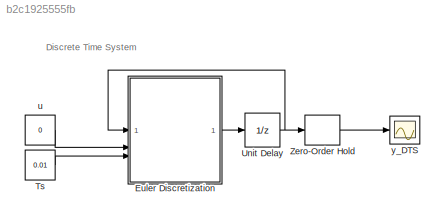
MODEL slx_b2c1925555fb
KIND model
CONFIG AbsTol = auto
CONFIG EnableMultiTasking = off
CONFIG FixedStep = 0.01
CONFIG MaxStep = auto
CONFIG MinStep = auto
CONFIG RelTol = 1e-3
CONFIG SampleTimeConstraint = Unconstrained
CONFIG SolverName = FixedStepAuto
CONFIG StartTime = 0
CONFIG StopTime = 100
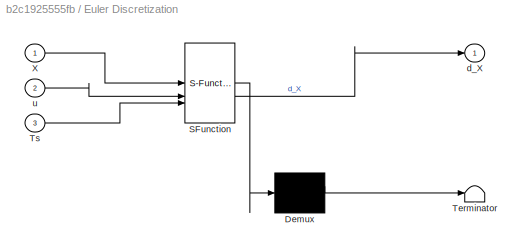
BLOCK [SubSystem] Euler Discretization
  ErrorFcn = Stateflow.Translate.translate
  PermitHierarchicalResolution = ExplicitOnly
  SFBlockType = MATLAB Function
  TreatAsAtomicUnit = on
BLOCK [Demux] Euler Discretization/ Demux 
  Outputs = 1
BLOCK [S-Function] Euler Discretization/ SFunction 
  EnableBusSupport = on
  FunctionName = sf_sfun
  PortCounts = [3 2]
  SFcnIsStateOwnerBlock = off
  SFunctionDeploymentMode = off
  Tag = Stateflow S-Function 2
BLOCK [Terminator] Euler Discretization/ Terminator 
BLOCK [Inport] Euler Discretization/Ts
  Port = 3
BLOCK [Inport] Euler Discretization/X
BLOCK [Outport] Euler Discretization/d_X
BLOCK [Inport] Euler Discretization/u
  Port = 2
BLOCK [Constant] Ts
  NameLocation = left
  Value = 0.01
BLOCK [UnitDelay] Unit Delay
  HasFrameUpgradeWarning = on
  InitialCondition = [1;1]
  SampleTime = -1
BLOCK [ZeroOrderHold] Zero-Order Hold
  SampleTime = -1
BLOCK [Constant] u
  NameLocation = left
  Value = 0
BLOCK [Scope] y_DTS
  Floating = off
  NameLocation = top
  NumInputPorts = 1
  ScopeSpecificationString = Simulink.scopes.TimeScopeBlockCfg('CurrentConfiguration', extmgr.ConfigurationSet(extmgr.Configuration('Core','General UI',true),extmgr.Configuration('Core','Source UI',true),extmgr.Configuration('Sources','WiredSimulink',true,'DataLoggingVariableName','ScopeData2'),extmgr.Configuration('Visuals','Time Domain',true,'SerializedDisplays',{struct('MinYLimReal','-0.11228','MaxYLimReal','2.39216','YLab...<+1541ch>
ANNOTATION (root): Discrete Time System
LINE Euler Discretization:1 -> Unit Delay:1
LINE Ts:1 -> Euler Discretization:3
NET Unit Delay:1 -> Euler Discretization:1, Zero-Order Hold:1
LINE Zero-Order Hold:1 -> y_DTS:1
LINE u:1 -> Euler Discretization:2
note: NET lines group one-source signal fan-out (src -> all destinations, sorted); 1:1 wires keep LINE
CHART Euler Discretization states=1 transitions=1
  STATE_LABEL 'eML_blk_kernel()'
  STATE_LABEL 'SCRIPT:\nfunction d_X = fcn(X, u, Ts)\n\nXdot = [X(1)*X(2)-X(1);\n        -4/3*X(1)*X(2)+2/3*X(2)+u];\n\nd_X = [X(1) + Ts*Xdot(1);\n          X(2) + Ts*Xdot(2)];'
CHART  states=0 transitions=0
